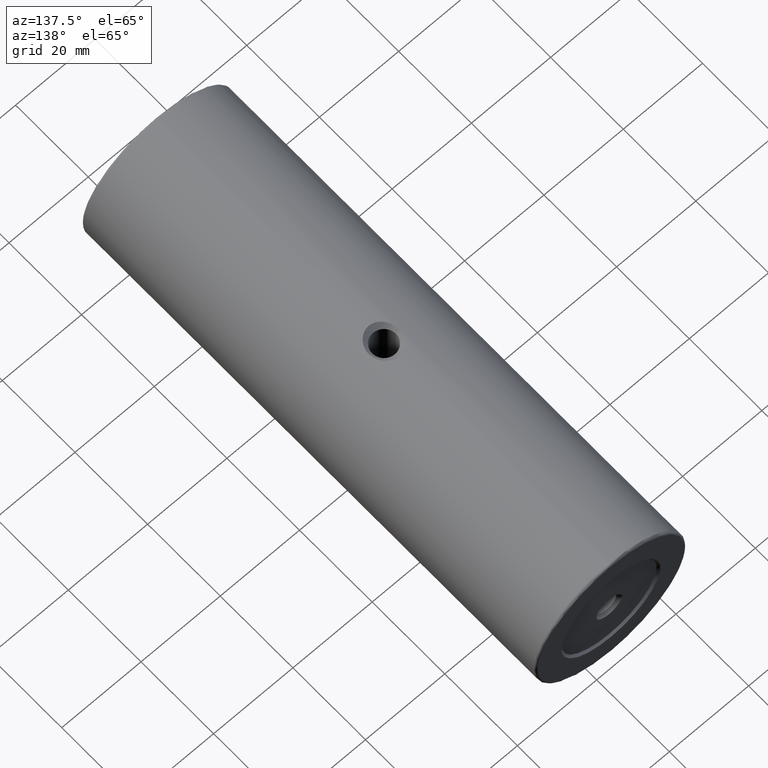
[diagram: clean part render]
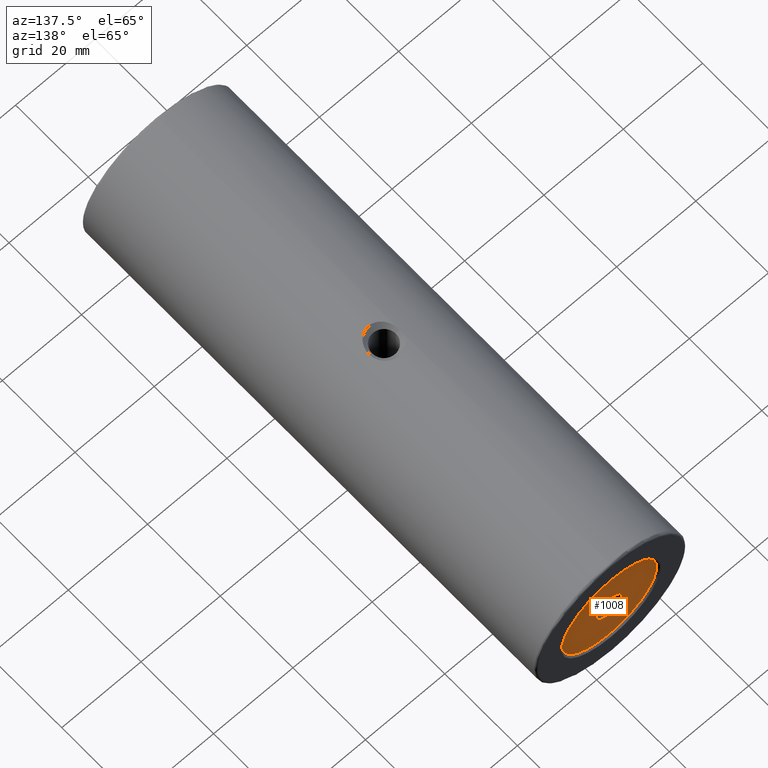
[diagram: same view with one face highlighted and labeled with its STEP entity id]
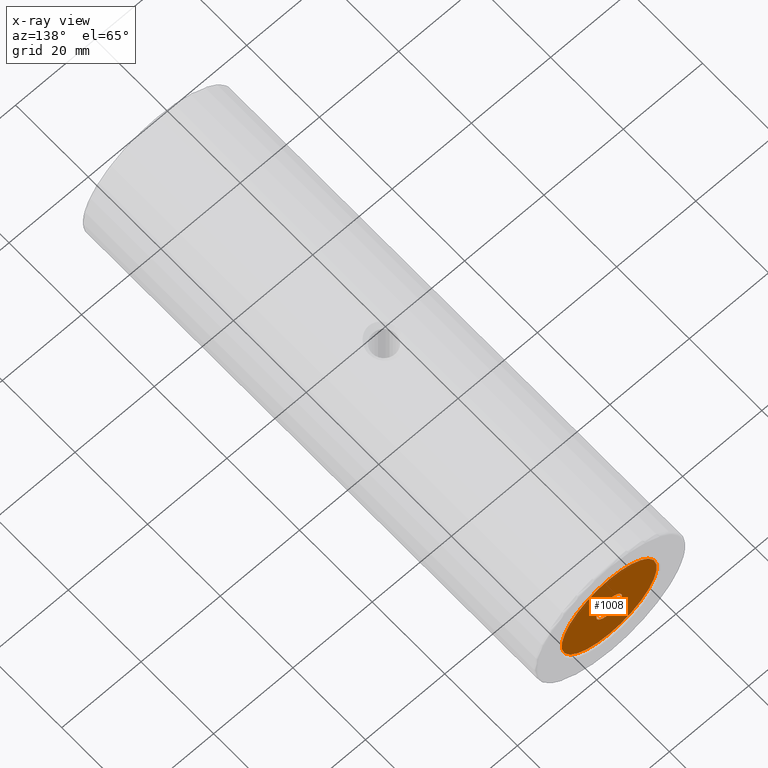
[diagram: x-ray of the same camera — body ghosted, the highlighted face saturated]
A machine part, auxiliary view. The second image highlights one B-rep face of the part: STEP entity #1008.
The next image is the same camera in x-ray: the body ghosted, the highlighted face saturated — about 0% of this face is hidden behind the body in this view.
In plain terms, the highlighted planar face has unit normal (0, 1, 0).
Its self-contained STEP definition (entity closure, byte-faithful):
#36 = VERTEX_POINT ( 'NONE', #49 ) ;
#49 = CARTESIAN_POINT ( 'NONE',  ( -85.22679983354142053, 57.73866000832570933, 396.7500000000000568 ) ) ;
#67 = CARTESIAN_POINT ( 'NONE',  ( -85.22679983354142053, 57.73866000832570933, 400.0000000000000000 ) ) ;
#86 = DIRECTION ( 'NONE',  ( 0.0000000000000000000, 1.000000000000000000, 0.0000000000000000000 ) ) ;
#88 = VERTEX_POINT ( 'NONE', #205 ) ;
#89 = FACE_OUTER_BOUND ( 'NONE', #727, .T. ) ;
#116 = EDGE_CURVE ( 'NONE', #88, #36, #418, .T. ) ;
#133 = CARTESIAN_POINT ( 'NONE',  ( -85.22679983354142053, 57.73866000832570933, 400.0000000000000000 ) ) ;
#144 = DIRECTION ( 'NONE',  ( 0.0000000000000000000, 1.000000000000000000, 0.0000000000000000000 ) ) ;
#157 = PLANE ( 'NONE',  #646 ) ;
#168 = AXIS2_PLACEMENT_3D ( 'NONE', #487, #86, #704 ) ;
#191 = DIRECTION ( 'NONE',  ( -0.0000000000000000000, -1.000000000000000000, -0.0000000000000000000 ) ) ;
#195 = DIRECTION ( 'NONE',  ( 0.0000000000000000000, 0.0000000000000000000, 1.000000000000000000 ) ) ;
#198 = ORIENTED_EDGE ( 'NONE', *, *, #608, .T. ) ;
#205 = CARTESIAN_POINT ( 'NONE',  ( -85.22679983354142053, 57.73866000832570933, 403.2500000000000000 ) ) ;
#223 = ORIENTED_EDGE ( 'NONE', *, *, #116, .T. ) ;
#326 = ORIENTED_EDGE ( 'NONE', *, *, #940, .T. ) ;
#328 = EDGE_CURVE ( 'NONE', #947, #523, #666, .T. ) ;
#351 = CARTESIAN_POINT ( 'NONE',  ( -85.22679983354142053, 57.73866000832570933, 400.0000000000000000 ) ) ;
#396 = DIRECTION ( 'NONE',  ( 0.0000000000000000000, 0.0000000000000000000, 1.000000000000000000 ) ) ;
#416 = CARTESIAN_POINT ( 'NONE',  ( -85.22679983354142053, 57.73866000832570933, 412.0000000000000568 ) ) ;
#418 = CIRCLE ( 'NONE', #998, 3.249999999999975131 ) ;
#487 = CARTESIAN_POINT ( 'NONE',  ( -85.22679983354142053, 57.73866000832570933, 400.0000000000000000 ) ) ;
#505 = AXIS2_PLACEMENT_3D ( 'NONE', #67, #144, #396 ) ;
#523 = VERTEX_POINT ( 'NONE', #416 ) ;
#608 = EDGE_CURVE ( 'NONE', #36, #88, #740, .T. ) ;
#609 = CIRCLE ( 'NONE', #168, 12.00000000000001066 ) ;
#646 = AXIS2_PLACEMENT_3D ( 'NONE', #787, #885, #948 ) ;
#666 = CIRCLE ( 'NONE', #505, 12.00000000000001066 ) ;
#676 = DIRECTION ( 'NONE',  ( 0.0000000000000000000, 0.0000000000000000000, 1.000000000000000000 ) ) ;
#704 = DIRECTION ( 'NONE',  ( 0.0000000000000000000, 0.0000000000000000000, 1.000000000000000000 ) ) ;
#727 = EDGE_LOOP ( 'NONE', ( #326, #961 ) ) ;
#732 = EDGE_LOOP ( 'NONE', ( #223, #198 ) ) ;
#740 = CIRCLE ( 'NONE', #951, 3.249999999999975131 ) ;
#787 = CARTESIAN_POINT ( 'NONE',  ( -85.22679983354142053, 57.73866000832570933, 400.0000000000000000 ) ) ;
#805 = FACE_BOUND ( 'NONE', #732, .T. ) ;
#881 = CARTESIAN_POINT ( 'NONE',  ( -85.22679983354142053, 57.73866000832570933, 388.0000000000000000 ) ) ;
#885 = DIRECTION ( 'NONE',  ( 0.0000000000000000000, 1.000000000000000000, 0.0000000000000000000 ) ) ;
#940 = EDGE_CURVE ( 'NONE', #523, #947, #609, .T. ) ;
#947 = VERTEX_POINT ( 'NONE', #881 ) ;
#948 = DIRECTION ( 'NONE',  ( 0.0000000000000000000, -0.0000000000000000000, 1.000000000000000000 ) ) ;
#951 = AXIS2_PLACEMENT_3D ( 'NONE', #351, #191, #676 ) ;
#961 = ORIENTED_EDGE ( 'NONE', *, *, #328, .T. ) ;
#982 = DIRECTION ( 'NONE',  ( -0.0000000000000000000, -1.000000000000000000, -0.0000000000000000000 ) ) ;
#998 = AXIS2_PLACEMENT_3D ( 'NONE', #133, #982, #195 ) ;
#1008 = ADVANCED_FACE ( 'NONE', ( #805, #89 ), #157, .T. ) ;